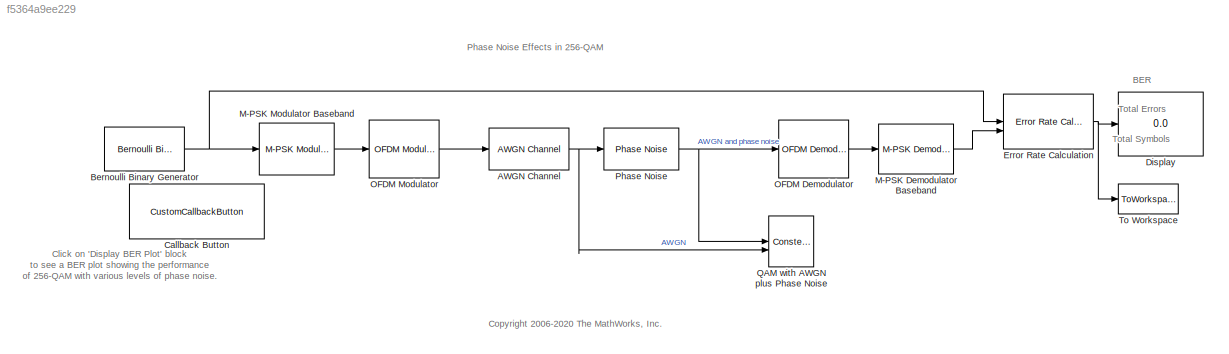
MODEL slx_f5364a9ee229
KIND model
CONFIG AbsTol = auto
CONFIG EnableMultiTasking = on
CONFIG FixedStep = auto
CONFIG MaxStep = auto
CONFIG MinStep = auto
CONFIG PreLoadFcn = Nbps = 8; % for 256 QAM\nEbN0 = 35;\nphaseNoise = -76;\nfreqOffset = 1000;\ntgtMaxErr = 100;
CONFIG RelTol = 1e-3
CONFIG SampleTimeConstraint = Unconstrained
CONFIG SolverName = FixedStepDiscrete
CONFIG StartTime = 0.0
CONFIG StopTime = inf
BLOCK [Reference] AWGN Channel  REF=commchan3/AWGN
Channel
  SourceBlock = commchan3/AWGN\nChannel
  SourceType = AWGN Channel
  UserDataPersistent = on
BLOCK [Reference] Bernoulli Binary Generator  REF=commrandsrc3/Bernoulli Binary
Generator
  SourceBlock = commrandsrc3/Bernoulli Binary\nGenerator
  SourceType = Bernoulli Binary Generator
BLOCK [CustomCallbackButton] Callback Button
  Configuration = {"components":[{"name":"BackgroundImageComponent","settings":{"image":{"size":[0,0],"src":"default","srcOrientation":"Right"},"position":[0,0,1,1]}},{"name":"ButtonStateComponent","settings":{"buttonType":"momentary","clickFcn":"openfig('phasenoiseplot.fig')","onValue":1,"position":[0,0,1,1],"pressDelay":"500","pressFcn":"","repeatInterval":"0","states":[{"horizontalAlignment":"center","image":{"p...<+2059ch>
  CustomBackgroundColor = {"color":[0.9568627451,0.9568627451,0.9568627451],"show":true}
BLOCK [Display] Display
  Decimation = 1
BLOCK [Reference] Error Rate Calculation  REF=commsink2/Error Rate
Calculation
  SourceBlock = commsink2/Error Rate\nCalculation
  SourceType = Error Rate Calculation
BLOCK [Reference] M-PSK Demodulator Baseband  REF=commdigbbndpm3/M-PSK
Demodulator
Baseband
  SourceBlock = commdigbbndpm3/M-PSK\nDemodulator\nBaseband
  SourceType = M-PSK Demodulator Baseband
BLOCK [Reference] M-PSK Modulator Baseband  REF=commdigbbndpm3/M-PSK
Modulator
Baseband
  SourceBlock = commdigbbndpm3/M-PSK\nModulator\nBaseband
  SourceType = M-PSK Modulator Baseband
BLOCK [Reference] OFDM Demodulator  REF=commofdm/OFDM Demodulator
  NameLocation = top
  SourceBlock = commofdm/OFDM Demodulator
  SourceType = OFDM Demodulator
  StatePerturbationForJacobian = 1.0e-05
BLOCK [Reference] OFDM Modulator  REF=commofdm/OFDM Modulator
  SourceBlock = commofdm/OFDM Modulator
  SourceType = OFDM Modulator
  StatePerturbationForJacobian = 1.0e-05
BLOCK [Reference] Phase Noise  REF=impairlib/Phase
Noise
  SourceBlock = impairlib/Phase\nNoise
  SourceType = Phase Noise
BLOCK [ConstellationDiagram] QAM with AWGN plus Phase Noise
  AxesLimits = [-1.5048 1.5035]
  DefaultConfigurationName = comm.scopes.ConstellationDiagramBlockCfg
  GraphicalSettings = {"Style":{"BackgroundColor":[0.12941176470588237,0.12941176470588237,0.12941176470588237],"AxesColor":[0.070588235294117646,0.070588235294117646,0.070588235294117646],"LabelsColor":[0.85098039215686272,0.85098039215686272,0.85098039215686272],"PreserveColors":false,"LineStyle":["NONE","NONE","NONE","NONE"],"LineWidth":[0.5,0.5,1,1],"LineColor":[[1,1,0.066666666666666666],[0.14901960784313725,0.549...<+778ch>
  NameLocation = right
  NumInputPorts = 2
  ReferenceColor = {[1 0 0],[0.0588235294117647 1 1]}
  ReferenceConstellation = {''256-QAM'',''256-QAM''}
  ReferenceMarker = {''+'',''+''}
  ScopeFrameLocation = window
  ScopeSpecificationString = comm.scopes.ConstellationDiagramBlockCfg('CurrentConfiguration', extmgr.ConfigurationSet(extmgr.Configuration('Core','General UI',true),extmgr.Configuration('Core','Source UI',true),extmgr.Configuration('Sources','WiredSimulink',true),extmgr.Configuration('Sources','File',false),extmgr.Configuration('Sources','Workspace',false),extmgr.Configuration('Sources','Streaming',false),extmgr.Configuration...<+2372ch>
  ShowLegend = on
  ShowReferenceConstellation = off
  SymbolsToDisplay = 2500
  SymbolsToDisplaySource = Property
  Tag = ScatterPlot
  Title = 256QAM AWGN and Phase Noise
  Visible = on
  WasSavedAsWebScope = on
  WindowPosition = [0.000000,36.000000,1366.000000,697.000000,]
  XLimits = [-1.5048 1.5035]
  YLimits = [-1.5048 1.5035]
BLOCK [ToWorkspace] To Workspace
  FixptAsFi = on
  MaxDataPoints = 1
  SampleTime = -1
  Save2DSignal = 2-D array (concatenate along first dimension)
  VariableName = outputErr
ANNOTATION (root): BER
ANNOTATION (root): Click on 'Display BER Plot' block to see a BER plot showing the performance of 256-QAM with various levels of phase noise.
ANNOTATION (root): <copyright redacted>
ANNOTATION (root): Phase Noise Effects in 256-QAM
ANNOTATION (root): Total Errors
ANNOTATION (root): Total Symbols
NET AWGN Channel:1 -> Phase Noise:1, QAM with AWGN plus Phase Noise:2
NET Bernoulli Binary Generator:1 -> Error Rate Calculation:1, M-PSK Modulator Baseband:1
NET Error Rate Calculation:1 -> Display:1, To Workspace:1
LINE M-PSK Demodulator Baseband:1 -> Error Rate Calculation:2
LINE M-PSK Modulator Baseband:1 -> OFDM Modulator:1
LINE OFDM Demodulator:1 -> M-PSK Demodulator Baseband:1
LINE OFDM Modulator:1 -> AWGN Channel:1
NET Phase Noise:1 -> OFDM Demodulator:1, QAM with AWGN plus Phase Noise:1
note: NET lines group one-source signal fan-out (src -> all destinations, sorted); 1:1 wires keep LINE
